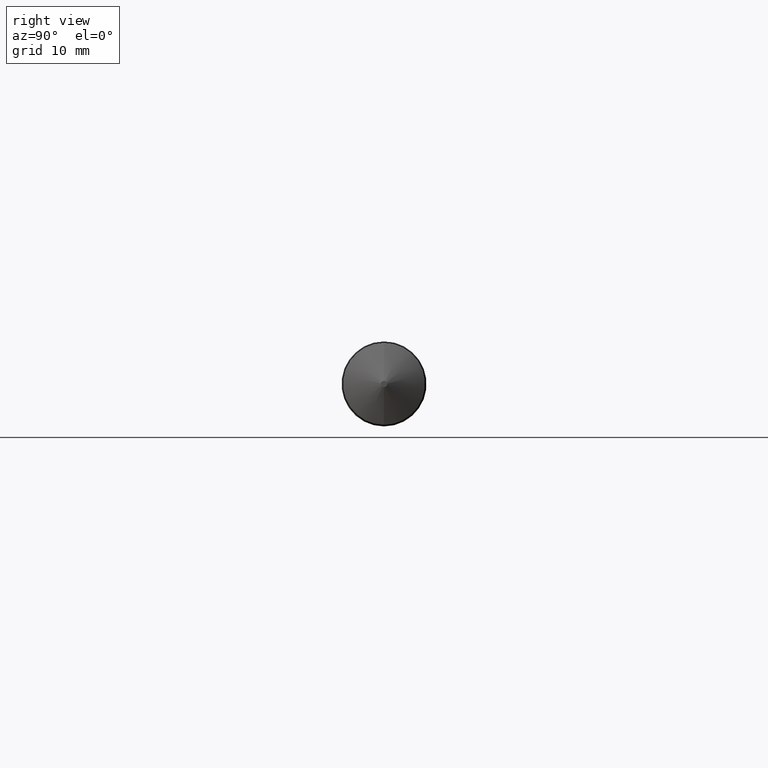
[diagram: clean part render]
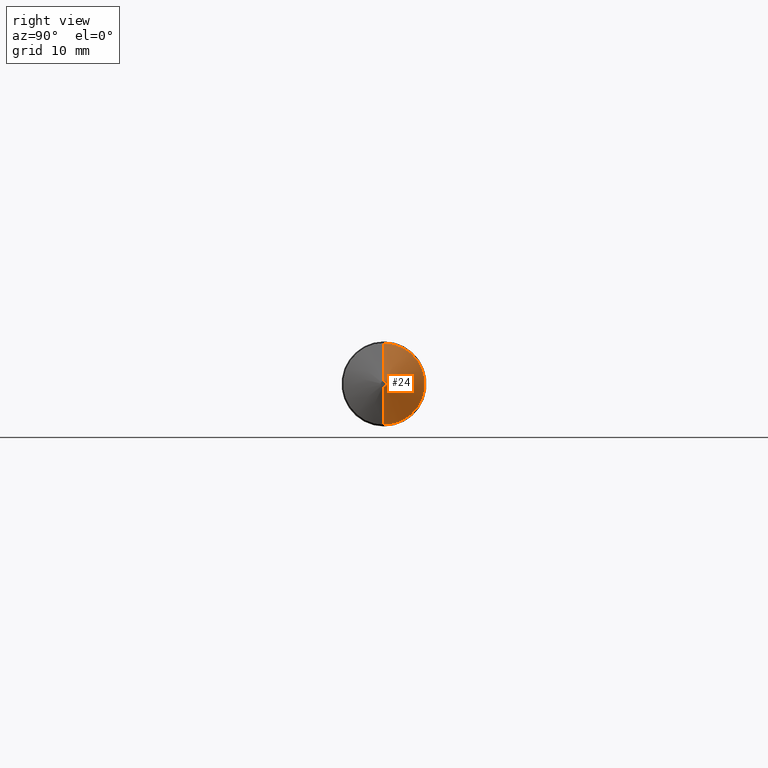
[diagram: same view with one face highlighted and labeled with its STEP entity id]
A machine part, right view. The second image highlights one B-rep face of the part: STEP entity #24.
In plain terms, the highlighted conical surface has half-angle 70 deg.
Its self-contained STEP definition (entity closure, byte-faithful):
#24 = ADVANCED_FACE ( 'NONE', ( #226 ), #260, .T. ) ;
#50 = VERTEX_POINT ( 'NONE', #317 ) ;
#52 = DIRECTION ( 'NONE',  ( 1.000000000000000000, -0.000000000000000000, -0.000000000000000000 ) ) ;
#63 = EDGE_CURVE ( 'NONE', #87, #171, #224, .T. ) ;
#68 = EDGE_LOOP ( 'NONE', ( #371, #308, #257, #177 ) ) ;
#79 = VERTEX_POINT ( 'NONE', #91 ) ;
#82 = CARTESIAN_POINT ( 'NONE',  ( 3.939314282300160563, 0.000000000000000000, 0.000000000000000000 ) ) ;
#87 = VERTEX_POINT ( 'NONE', #122 ) ;
#91 = CARTESIAN_POINT ( 'NONE',  ( 4.015748031496062964, 1.500192328955513910E-17, -0.01750000000000049780 ) ) ;
#97 = CARTESIAN_POINT ( 'NONE',  ( 4.015748031496062964, 0.000000000000000000, 0.01750000000000049780 ) ) ;
#122 = CARTESIAN_POINT ( 'NONE',  ( 3.939314282300160563, 2.786071468060234087E-17, -0.2275000000000004796 ) ) ;
#147 = AXIS2_PLACEMENT_3D ( 'NONE', #193, #220, #278 ) ;
#158 = CARTESIAN_POINT ( 'NONE',  ( 4.015748031496062964, 2.143131898507929234E-18, -0.01750000000000049780 ) ) ;
#171 = VERTEX_POINT ( 'NONE', #185 ) ;
#173 = DIRECTION ( 'NONE',  ( 0.000000000000000000, 0.000000000000000000, 1.000000000000000000 ) ) ;
#175 = DIRECTION ( 'NONE',  ( -1.000000000000000000, 0.000000000000000000, 0.000000000000000000 ) ) ;
#177 = ORIENTED_EDGE ( 'NONE', *, *, #227, .F. ) ;
#185 = CARTESIAN_POINT ( 'NONE',  ( 3.939314282300160563, 0.000000000000000000, 0.2275000000000004796 ) ) ;
#192 = EDGE_CURVE ( 'NONE', #79, #87, #360, .T. ) ;
#193 = CARTESIAN_POINT ( 'NONE',  ( 4.015748031496062964, 0.000000000000000000, 0.000000000000000000 ) ) ;
#198 = VECTOR ( 'NONE', #212, 39.37007874015748143 ) ;
#212 = DIRECTION ( 'NONE',  ( -0.3420201433256673806, 0.000000000000000000, 0.9396926207859088720 ) ) ;
#220 = DIRECTION ( 'NONE',  ( 1.000000000000000000, -0.000000000000000000, -0.000000000000000000 ) ) ;
#224 = CIRCLE ( 'NONE', #338, 0.2275000000000005074 ) ;
#226 = FACE_OUTER_BOUND ( 'NONE', #68, .T. ) ;
#227 = EDGE_CURVE ( 'NONE', #50, #171, #239, .T. ) ;
#239 = LINE ( 'NONE', #97, #198 ) ;
#253 = DIRECTION ( 'NONE',  ( 0.000000000000000000, 0.000000000000000000, -1.000000000000000000 ) ) ;
#257 = ORIENTED_EDGE ( 'NONE', *, *, #63, .T. ) ;
#260 = CONICAL_SURFACE ( 'NONE', #270, 0.01750000000000049780, 1.221730476396032161 ) ;
#270 = AXIS2_PLACEMENT_3D ( 'NONE', #325, #175, #173 ) ;
#272 = DIRECTION ( 'NONE',  ( -0.3420201433256673806, 1.150791560227850763E-16, -0.9396926207859088720 ) ) ;
#276 = EDGE_CURVE ( 'NONE', #79, #50, #348, .T. ) ;
#278 = DIRECTION ( 'NONE',  ( 0.000000000000000000, 0.000000000000000000, -1.000000000000000000 ) ) ;
#308 = ORIENTED_EDGE ( 'NONE', *, *, #192, .T. ) ;
#317 = CARTESIAN_POINT ( 'NONE',  ( 4.015748031496062964, 0.000000000000000000, 0.01750000000000049780 ) ) ;
#325 = CARTESIAN_POINT ( 'NONE',  ( 4.015748031496062964, 0.000000000000000000, 0.000000000000000000 ) ) ;
#338 = AXIS2_PLACEMENT_3D ( 'NONE', #82, #52, #253 ) ;
#348 = CIRCLE ( 'NONE', #147, 0.01750000000000049780 ) ;
#360 = LINE ( 'NONE', #158, #368 ) ;
#368 = VECTOR ( 'NONE', #272, 39.37007874015748143 ) ;
#371 = ORIENTED_EDGE ( 'NONE', *, *, #276, .F. ) ;